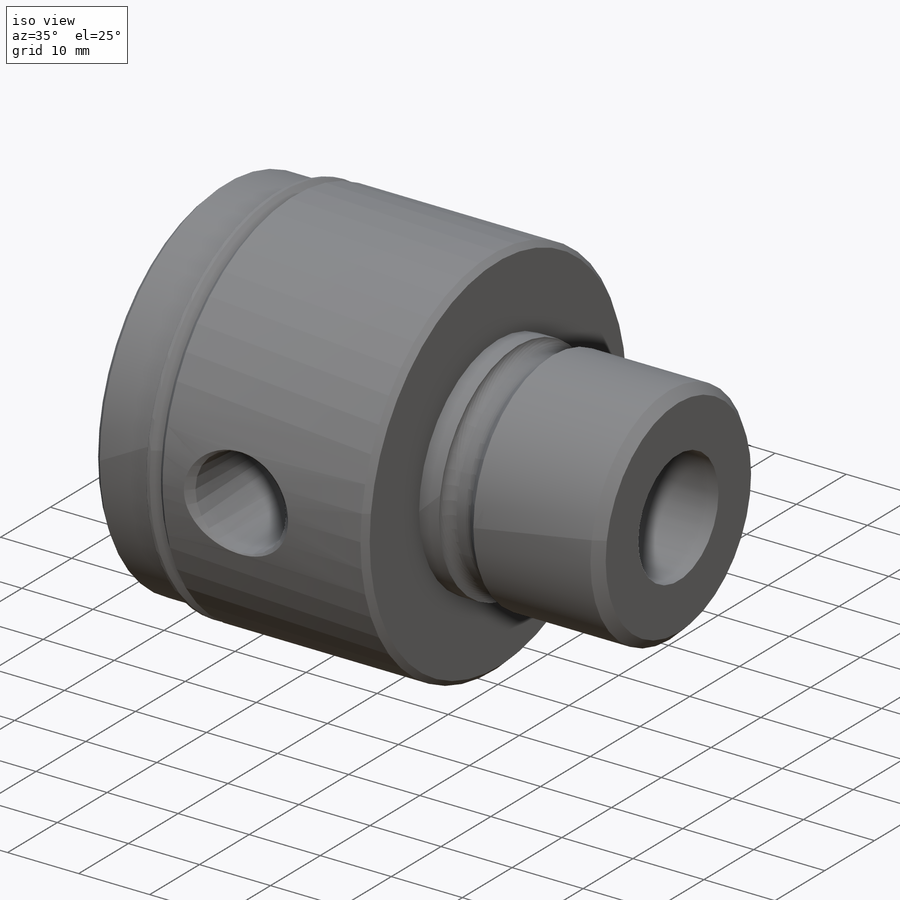
[diagram: iso view]
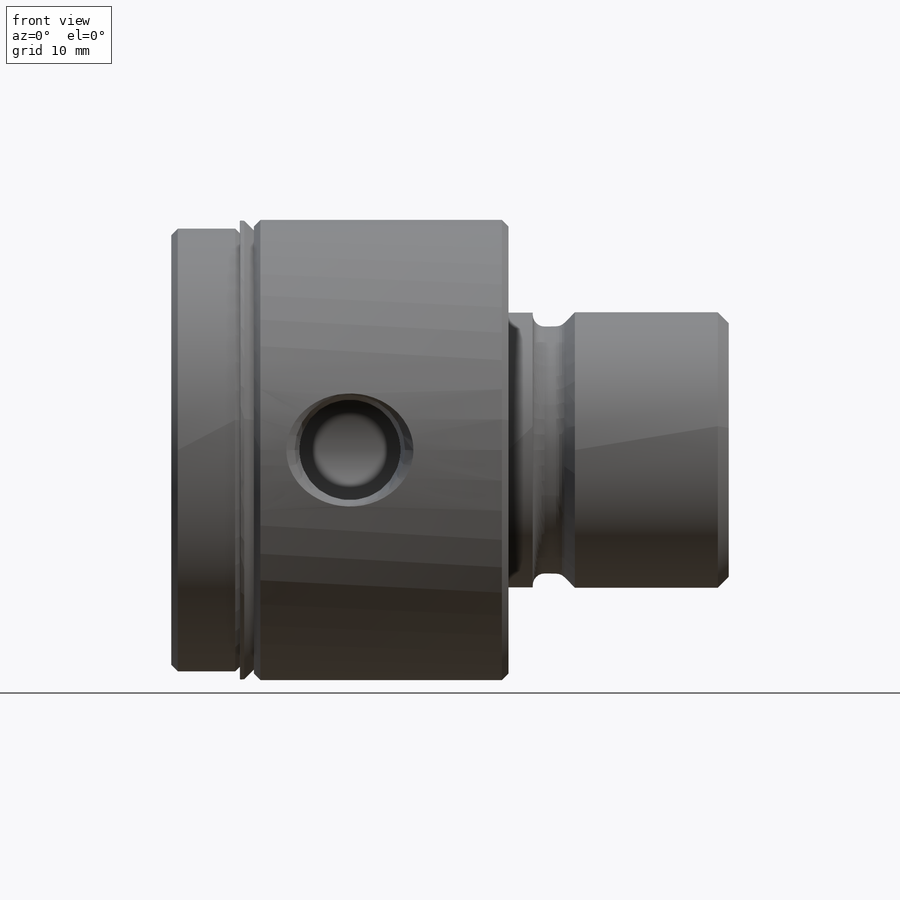
[diagram: front view]
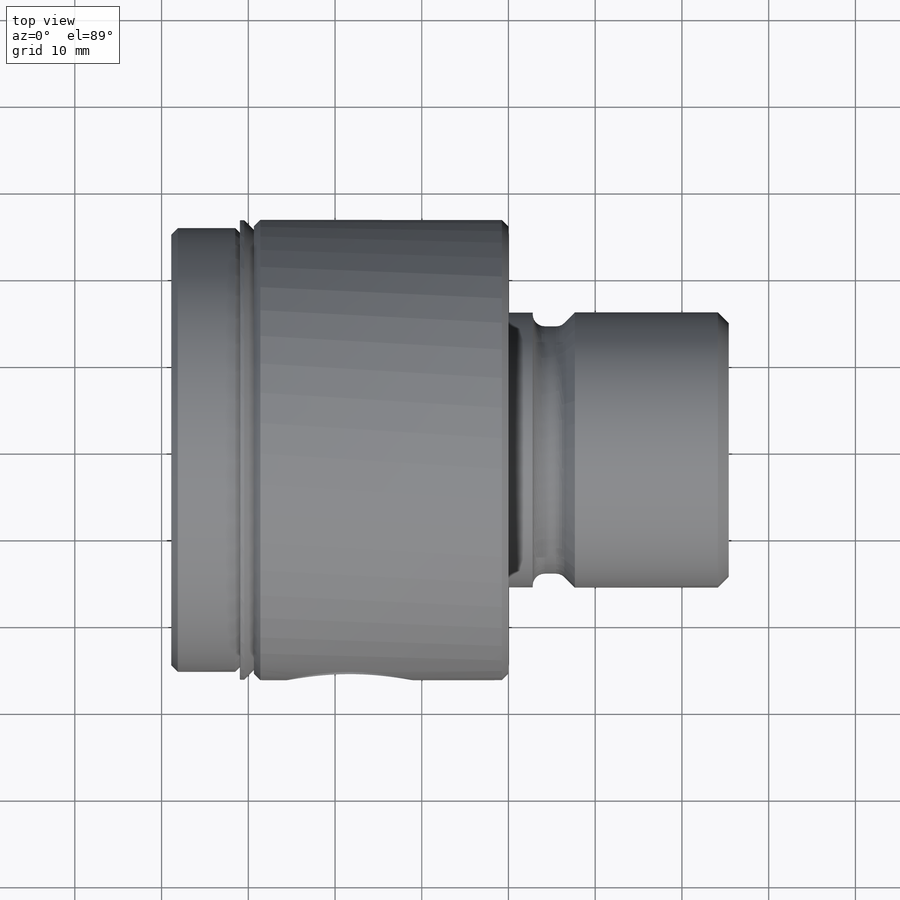
[diagram: top view]
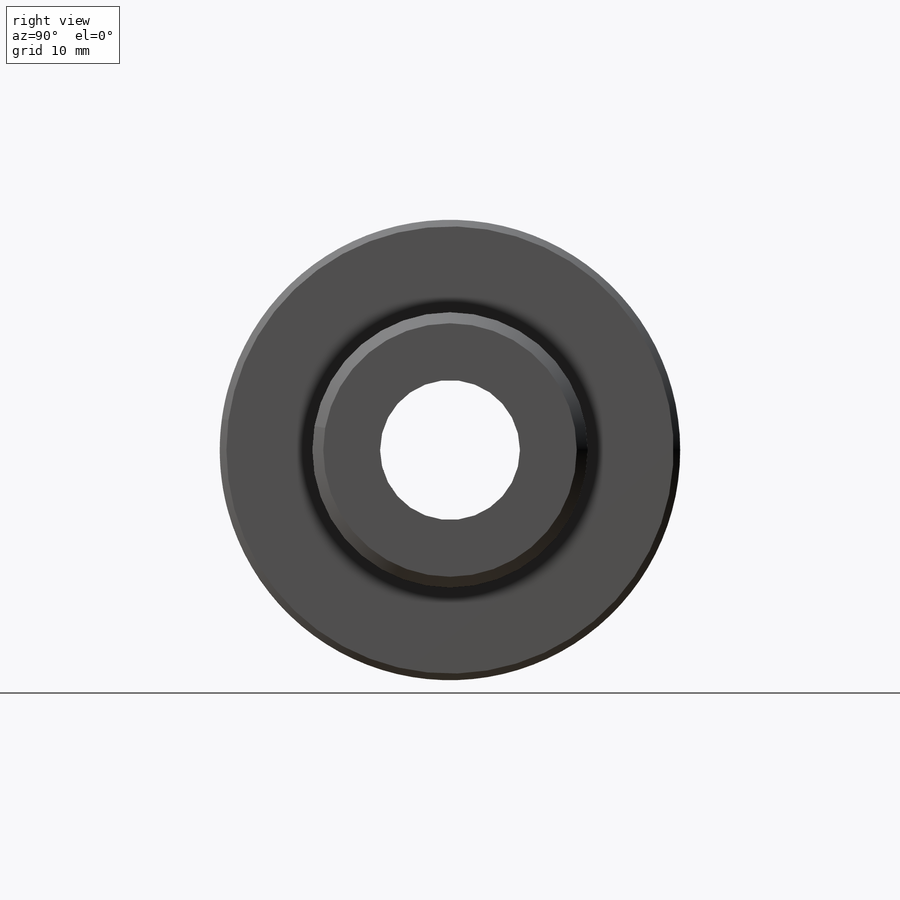
[diagram: right view]
SOLIDWORKS PART (.sldprt)
format: sldprt  version: not decoded by parser v0  size: 414,208 bytes
history: native  units: mm
features: plane x56, sketch x20, revolve x3, thread x2, cut_revolve x2, material x1 (+56 scaffold rows collapsed)
feature tree (140):
  scaffold x56  (default folders/planes/origin — collapsed)
  material  "Material <not specified>"
  sketch  "Sketch1"
  revolve  "Revolve1"  Angle=360deg
  sketch  "Sketch2"
  revolve  "Revolve2"  [1 undecoded]
  thread  "Cosmetic Thread1"  Diameter=18.953068mm  [1 undecoded]
  sketch  "Sketch3"
  cut_revolve  "Cut-Revolve1"  [1 undecoded]
  thread  "Cosmetic Thread2"  Diameter=20.574mm  [1 undecoded]
  sketch  "Sketch4"
  revolve  "Revolve3"  Angle=360deg
  plane  "Plane1"  Offset=26.1874mm
  plane  "Plane2"  Offset=61.214mm
  plane  "Plane3"  Offset=19.05mm
  plane  "Plane4"  Offset=25.4mm
  plane  "Plane5"  Offset=44.45mm
  sketch  "Sketch5"
  cut_revolve  "Cut-Revolve2"  Angle=360deg
  plane  "Plane6"  Offset=38.8874mm
  plane  "Plane7"  Offset=25.4mm
  plane  "Plane8"  Offset=25.4mm
  plane  "Plane9"  Offset=0mm
  plane  "Plane10"  Offset=0mm
  plane  "Plane11"  Offset=0mm
  plane  "e2 XY"
  plane  "e2 XZ"
  plane  "e2 YZ"
  sketch  "e2"
  plane  "g2 XY"
  plane  "g2 XZ"
  plane  "g2 YZ"
  sketch  "g2"
  plane  "h1 XY"
  plane  "h1 XZ"
  plane  "h1 YZ"
  sketch  "h1"
  plane  "h2 XY"
  plane  "h2 XZ"
  plane  "h2 YZ"
  sketch  "h2"
  plane  "k1 XY"
  plane  "k1 XZ"
  plane  "k1 YZ"
  sketch  "k1"
  plane  "k2 XY"
  plane  "k2 XZ"
  plane  "k2 YZ"
  sketch  "k2"
  plane  "l1 XY"
  plane  "l1 XZ"
  plane  "l1 YZ"
  sketch  "l1"
  plane  "l2 XY"
  plane  "l2 XZ"
  plane  "l2 YZ"
  sketch  "l2"
  plane  "lovra XY"
  plane  "lovra XZ"
  plane  "lovra YZ"
  sketch  "lovra"
  plane  "to_ft XY"
  plane  "to_ft XZ"
  plane  "to_ft YZ"
  sketch  "to_ft"
  plane  "to_nut XY"
  plane  "to_nut XZ"
  plane  "to_nut YZ"
  sketch  "to_nut"
  plane  "to_stud XY"
  plane  "to_stud XZ"
  plane  "to_stud YZ"
  sketch  "to_stud"
  plane  "to_stud_1 XY"
  plane  "to_stud_1 XZ"
  plane  "to_stud_1 YZ"
  sketch  "to_stud_1"
  plane  "to_stud_trans XY"
  plane  "to_stud_trans XZ"
  plane  "to_stud_trans YZ"
  sketch  "to_stud_trans"
  plane  "to_tube XY"
  plane  "to_tube XZ"
  plane  "to_tube YZ"
  sketch  "to_tube"
decode coverage: 5 of 27 modeling features carry decoded parameters
note: 4 parameter values undecoded
note: suppression state not decoded; provenance and decode notes live in map.json
